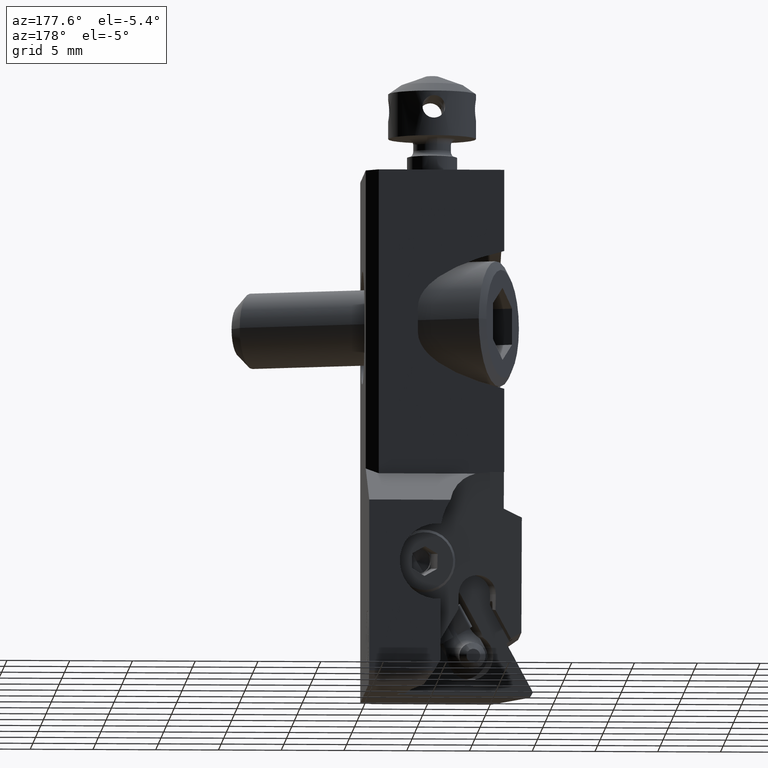
[diagram: clean part render]
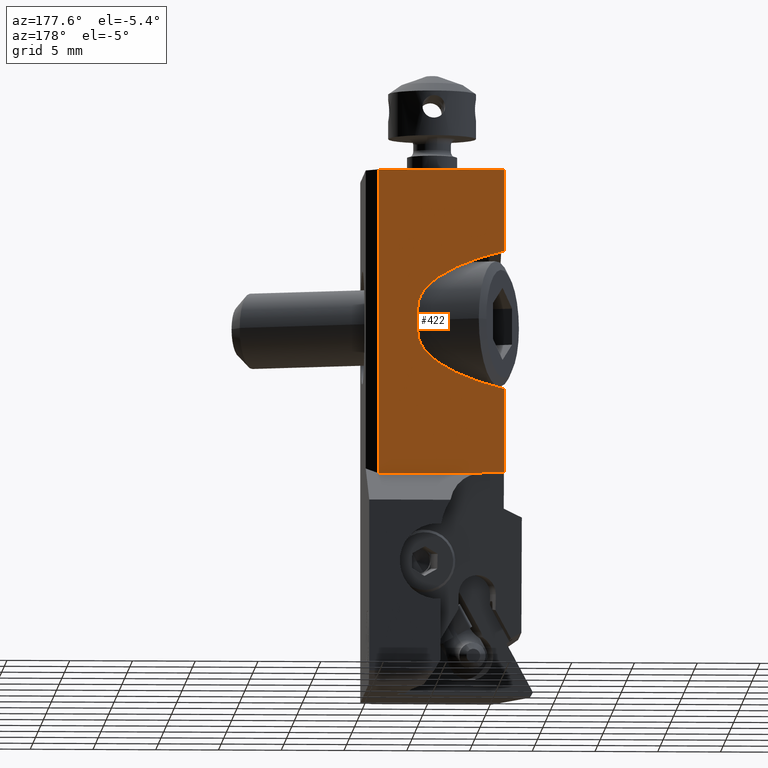
[diagram: same view with one face highlighted and labeled with its STEP entity id]
A machine part, auxiliary view. The second image highlights one B-rep face of the part: STEP entity #422.
In plain terms, the highlighted planar face has unit normal (0, 1, 0).
Its self-contained STEP definition (entity closure, byte-faithful):
#422=ADVANCED_FACE('',(#749),#630,.T.);
#630=PLANE('',#4325);
#749=FACE_OUTER_BOUND('',#966,.T.);
#966=EDGE_LOOP('',(#1515,#1516,#1517,#1518,#1519,#1520,#1521,#1522,#1523,
#1524,#1525));
#1154=B_SPLINE_CURVE_WITH_KNOTS('',3,(#6330,#6331,#6332,#6333,#6334,#6335),
 .UNSPECIFIED.,.F.,.F.,(4,1,1,4),(0.,0.3333333333333,0.6666666666667,1.),
 .UNSPECIFIED.);
#1155=B_SPLINE_CURVE_WITH_KNOTS('',3,(#6337,#6338,#6339,#6340,#6341,#6342),
 .UNSPECIFIED.,.F.,.F.,(4,1,1,4),(0.,0.3333333333333,0.6666666666667,1.),
 .UNSPECIFIED.);
#1209=ELLIPSE('',#4322,16.0809242008676,5.5);
#1210=ELLIPSE('',#4324,16.0809242008676,5.5);
#1515=ORIENTED_EDGE('',*,*,#2952,.T.);
#1516=ORIENTED_EDGE('',*,*,#2943,.F.);
#1517=ORIENTED_EDGE('',*,*,#2909,.T.);
#1518=ORIENTED_EDGE('',*,*,#2907,.T.);
#1519=ORIENTED_EDGE('',*,*,#2905,.T.);
#1520=ORIENTED_EDGE('',*,*,#2953,.T.);
#1521=ORIENTED_EDGE('',*,*,#2954,.T.);
#1522=ORIENTED_EDGE('',*,*,#2955,.T.);
#1523=ORIENTED_EDGE('',*,*,#2941,.F.);
#1524=ORIENTED_EDGE('',*,*,#2951,.F.);
#1525=ORIENTED_EDGE('',*,*,#2956,.T.);
#2493=VERTEX_POINT('',#6193);
#2494=VERTEX_POINT('',#6195);
#2495=VERTEX_POINT('',#6199);
#2496=VERTEX_POINT('',#6203);
#2513=VERTEX_POINT('',#6307);
#2514=VERTEX_POINT('',#6308);
#2515=VERTEX_POINT('',#6311);
#2521=VERTEX_POINT('',#6325);
#2522=VERTEX_POINT('',#6329);
#2523=VERTEX_POINT('',#6336);
#2524=VERTEX_POINT('',#6343);
#2905=EDGE_CURVE('',#2494,#2493,#3460,.T.);
#2907=EDGE_CURVE('',#2495,#2494,#3462,.T.);
#2909=EDGE_CURVE('',#2496,#2495,#3464,.T.);
#2941=EDGE_CURVE('',#2513,#2514,#3489,.T.);
#2943=EDGE_CURVE('',#2496,#2515,#3491,.T.);
#2951=EDGE_CURVE('',#2521,#2513,#1209,.T.);
#2952=EDGE_CURVE('',#2522,#2515,#1210,.T.);
#2953=EDGE_CURVE('',#2493,#2523,#1154,.T.);
#2954=EDGE_CURVE('',#2523,#2524,#1155,.T.);
#2955=EDGE_CURVE('',#2524,#2514,#3495,.T.);
#2956=EDGE_CURVE('',#2521,#2522,#3496,.T.);
#3460=LINE('',#6194,#3813);
#3462=LINE('',#6198,#3815);
#3464=LINE('',#6202,#3817);
#3489=LINE('',#6306,#3842);
#3491=LINE('',#6310,#3844);
#3495=LINE('',#6344,#3848);
#3496=LINE('',#6345,#3849);
#3813=VECTOR('',#4910,1.);
#3815=VECTOR('',#4914,1.);
#3817=VECTOR('',#4918,1.);
#3842=VECTOR('',#4983,1.);
#3844=VECTOR('',#4985,1.);
#3848=VECTOR('',#5005,1.);
#3849=VECTOR('',#5006,1.);
#4322=AXIS2_PLACEMENT_3D('',#6326,#4999,#5000);
#4324=AXIS2_PLACEMENT_3D('',#6328,#5003,#5004);
#4325=AXIS2_PLACEMENT_3D('',#6346,#5007,#5008);
#4910=DIRECTION('',(-1.,5.782595814627E-14,1.248672084274E-13));
#4914=DIRECTION('',(0.,0.,-1.));
#4918=DIRECTION('',(1.,0.,0.));
#4983=DIRECTION('',(-2.170971315647E-13,-2.773722565445E-14,-1.));
#4985=DIRECTION('',(1.188331738421E-13,6.215467848423E-14,-1.));
#4999=DIRECTION('',(0.,1.,0.));
#5000=DIRECTION('',(-1.,0.,0.));
#5003=DIRECTION('',(0.,-1.,0.));
#5004=DIRECTION('',(-1.,0.,0.));
#5005=DIRECTION('',(-0.999922374271166,2.55304924209591E-14,-0.0124597524820896));
#5006=DIRECTION('',(-2.553512956638E-13,9.237055564881E-14,1.));
#5007=DIRECTION('',(0.,1.,0.));
#5008=DIRECTION('',(0.,0.,-1.));
#6193=CARTESIAN_POINT('',(-8.71047413497896,12.3500001490434,-24.3000000694993));
#6194=CARTESIAN_POINT('',(-1.,12.35,-24.3));
#6195=CARTESIAN_POINT('',(-1.,12.35,-24.3));
#6198=CARTESIAN_POINT('',(-1.,12.35,0.));
#6199=CARTESIAN_POINT('',(-1.,12.35,0.));
#6202=CARTESIAN_POINT('',(-11.,12.35,0.));
#6203=CARTESIAN_POINT('',(-11.,12.35,0.));
#6306=CARTESIAN_POINT('',(-11.,12.35,-17.51242718364));
#6307=CARTESIAN_POINT('',(-11.,12.35,-17.5124271836436));
#6308=CARTESIAN_POINT('',(-11.,12.35,-24.17283055632));
#6310=CARTESIAN_POINT('',(-11.,12.35,0.));
#6311=CARTESIAN_POINT('',(-10.9999999999996,12.3500000000002,-6.48757281635653));
#6325=CARTESIAN_POINT('',(-4.11303483209026,12.35,-12.9999999999997));
#6326=CARTESIAN_POINT('',(-20.1939590329615,12.35,-13.));
#6328=CARTESIAN_POINT('',(-20.1939590329615,12.35,-11.));
#6329=CARTESIAN_POINT('',(-4.11303483209171,12.3500000000005,-11.0000000000001));
#6330=CARTESIAN_POINT('',(-8.710474343748,12.35,-24.3));
#6331=CARTESIAN_POINT('',(-8.839299425226,12.35,-24.26889303435));
#6332=CARTESIAN_POINT('',(-9.098706431334,12.34999993093,-24.21701311332));
#6333=CARTESIAN_POINT('',(-9.494541071443,12.35000024174,-24.16992641493));
#6334=CARTESIAN_POINT('',(-9.759974117747,12.34999948198,-24.15942813415));
#6335=CARTESIAN_POINT('',(-9.893321426792,12.34999948198,-24.15942813415));
#6336=CARTESIAN_POINT('',(-9.893321426792,12.34999948198,-24.15942813415));
#6337=CARTESIAN_POINT('',(-9.893321426792,12.34999948198,-24.15942813415));
#6338=CARTESIAN_POINT('',(-9.900330737304,12.34999948198,-24.15942813415));
#6339=CARTESIAN_POINT('',(-9.914349949193,12.35000024174,-24.15946517581));
#6340=CARTESIAN_POINT('',(-9.935380778313,12.34999993093,-24.15959299476));
#6341=CARTESIAN_POINT('',(-9.949402234951,12.35,-24.15973935199));
#6342=CARTESIAN_POINT('',(-9.956413225927,12.35,-24.15982671399));
#6343=CARTESIAN_POINT('',(-9.956413225927,12.35,-24.15982671399));
#6344=CARTESIAN_POINT('',(-9.956413225927,12.35,-24.15982671399));
#6345=CARTESIAN_POINT('',(-4.113034832094,12.35,-13.));
#6346=CARTESIAN_POINT('',(-6.,12.35,-12.15));